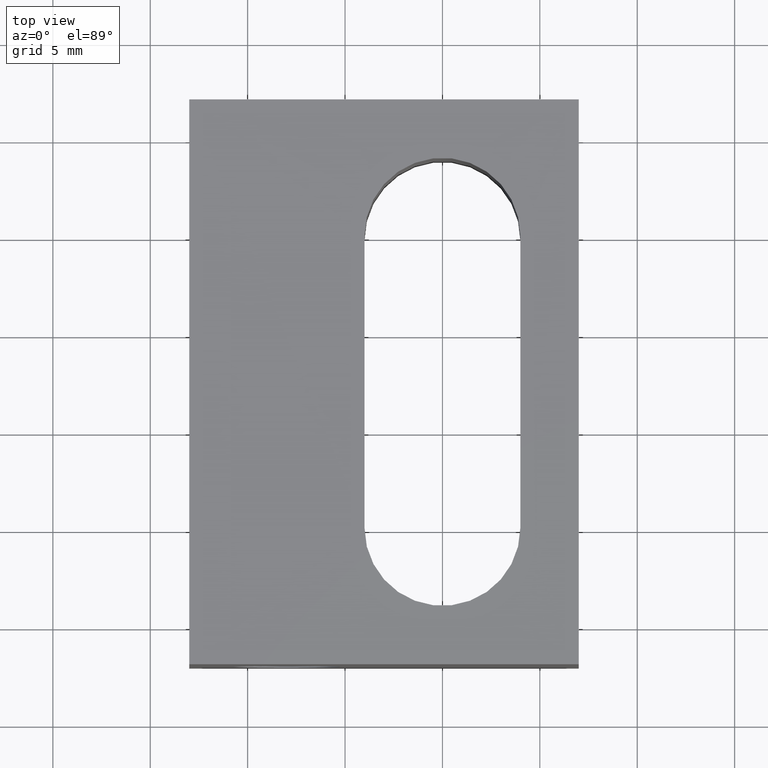
[diagram: clean part render]
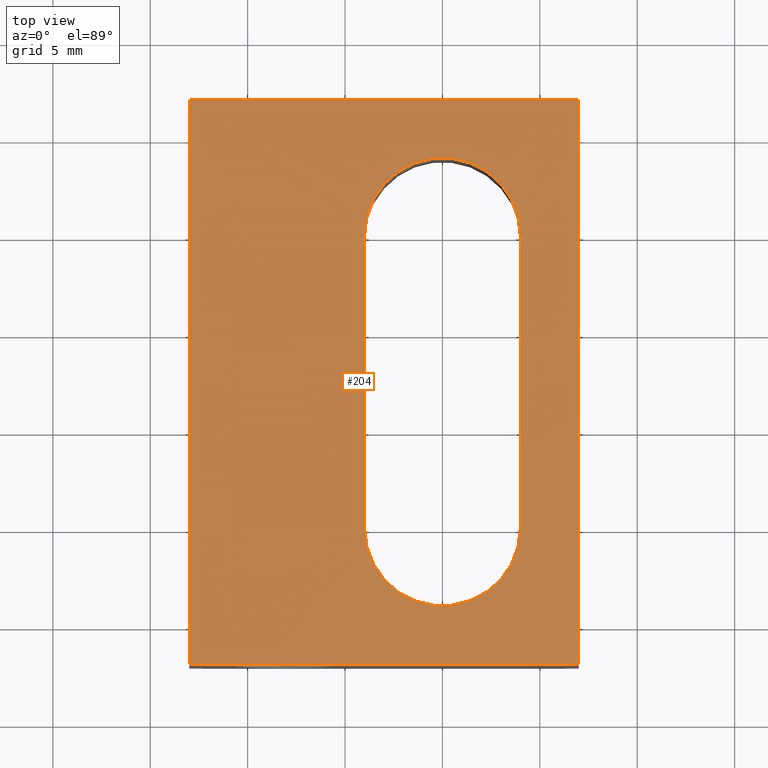
[diagram: same view with one face highlighted and labeled with its STEP entity id]
A machine part, top view. The second image highlights one B-rep face of the part: STEP entity #204.
In plain terms, the highlighted planar face has unit normal (0, 0, 1).
Its self-contained STEP definition (entity closure, byte-faithful):
#20=FACE_BOUND('',#47,.T.);
#25=CIRCLE('',#220,3.999999999984);
#26=CIRCLE('',#221,3.999999999984);
#33=FACE_OUTER_BOUND('',#46,.T.);
#46=EDGE_LOOP('',(#158,#159,#160,#161));
#47=EDGE_LOOP('',(#162,#163,#164,#165));
#59=LINE('',#295,#79);
#62=LINE('',#303,#82);
#65=LINE('',#309,#85);
#67=LINE('',#314,#87);
#68=LINE('',#320,#88);
#69=LINE('',#323,#89);
#79=VECTOR('',#237,19.99999999992);
#82=VECTOR('',#244,28.999999999884);
#85=VECTOR('',#249,19.99999999992);
#87=VECTOR('',#255,28.999999999884);
#88=VECTOR('',#260,14.99999999994);
#89=VECTOR('',#263,14.99999999994);
#96=VERTEX_POINT('',#288);
#99=VERTEX_POINT('',#293);
#102=VERTEX_POINT('',#301);
#104=VERTEX_POINT('',#307);
#106=VERTEX_POINT('',#316);
#107=VERTEX_POINT('',#317);
#108=VERTEX_POINT('',#319);
#109=VERTEX_POINT('',#321);
#117=EDGE_CURVE('',#96,#99,#59,.T.);
#121=EDGE_CURVE('',#99,#102,#62,.T.);
#124=EDGE_CURVE('',#102,#104,#65,.T.);
#127=EDGE_CURVE('',#104,#96,#67,.T.);
#128=EDGE_CURVE('',#106,#107,#25,.T.);
#129=EDGE_CURVE('',#108,#106,#68,.T.);
#130=EDGE_CURVE('',#109,#108,#26,.T.);
#131=EDGE_CURVE('',#107,#109,#69,.T.);
#158=ORIENTED_EDGE('',*,*,#117,.T.);
#159=ORIENTED_EDGE('',*,*,#121,.T.);
#160=ORIENTED_EDGE('',*,*,#124,.T.);
#161=ORIENTED_EDGE('',*,*,#127,.T.);
#162=ORIENTED_EDGE('',*,*,#128,.F.);
#163=ORIENTED_EDGE('',*,*,#129,.F.);
#164=ORIENTED_EDGE('',*,*,#130,.F.);
#165=ORIENTED_EDGE('',*,*,#131,.F.);
#196=PLANE('',#219);
#204=ADVANCED_FACE('',(#33,#20),#196,.T.);
#219=AXIS2_PLACEMENT_3D('',#315,#256,#257);
#220=AXIS2_PLACEMENT_3D('',#318,#258,#259);
#221=AXIS2_PLACEMENT_3D('',#322,#261,#262);
#237=DIRECTION('',(1.,0.,0.));
#244=DIRECTION('',(0.,1.,0.));
#249=DIRECTION('',(-1.,0.,0.));
#255=DIRECTION('',(0.,-1.,0.));
#256=DIRECTION('center_axis',(0.,0.,1.));
#257=DIRECTION('ref_axis',(1.,0.,0.));
#258=DIRECTION('center_axis',(0.,0.,1.));
#259=DIRECTION('ref_axis',(1.,0.,0.));
#260=DIRECTION('',(0.,1.,0.));
#261=DIRECTION('center_axis',(0.,0.,1.));
#262=DIRECTION('ref_axis',(1.,0.,0.));
#263=DIRECTION('',(0.,-1.,0.));
#288=CARTESIAN_POINT('',(-12.9999999999479,-6.99999999997226,13.));
#293=CARTESIAN_POINT('',(6.99999999997203,-6.99999999997226,13.));
#295=CARTESIAN_POINT('',(-12.9999999999479,-6.99999999997226,13.));
#301=CARTESIAN_POINT('',(6.99999999997203,21.9999999999118,13.));
#303=CARTESIAN_POINT('',(6.99999999997203,-6.99999999997226,13.));
#307=CARTESIAN_POINT('',(-12.9999999999479,21.9999999999118,13.));
#309=CARTESIAN_POINT('',(6.99999999997203,21.9999999999118,13.));
#314=CARTESIAN_POINT('',(-12.9999999999479,21.9999999999118,13.));
#315=CARTESIAN_POINT('Origin',(-15.0000047343156,-9.90000473426517,13.));
#316=CARTESIAN_POINT('',(3.99999999998409,14.99999999994,13.));
#317=CARTESIAN_POINT('',(-3.99999999998409,14.99999999994,13.));
#318=CARTESIAN_POINT('Origin',(0.,14.99999999994,13.));
#319=CARTESIAN_POINT('',(3.99999999998386,0.,13.));
#320=CARTESIAN_POINT('',(3.99999999998386,0.,13.));
#321=CARTESIAN_POINT('',(-3.99999999998409,0.,13.));
#322=CARTESIAN_POINT('Origin',(0.,0.,13.));
#323=CARTESIAN_POINT('',(-3.99999999998409,14.99999999994,13.));